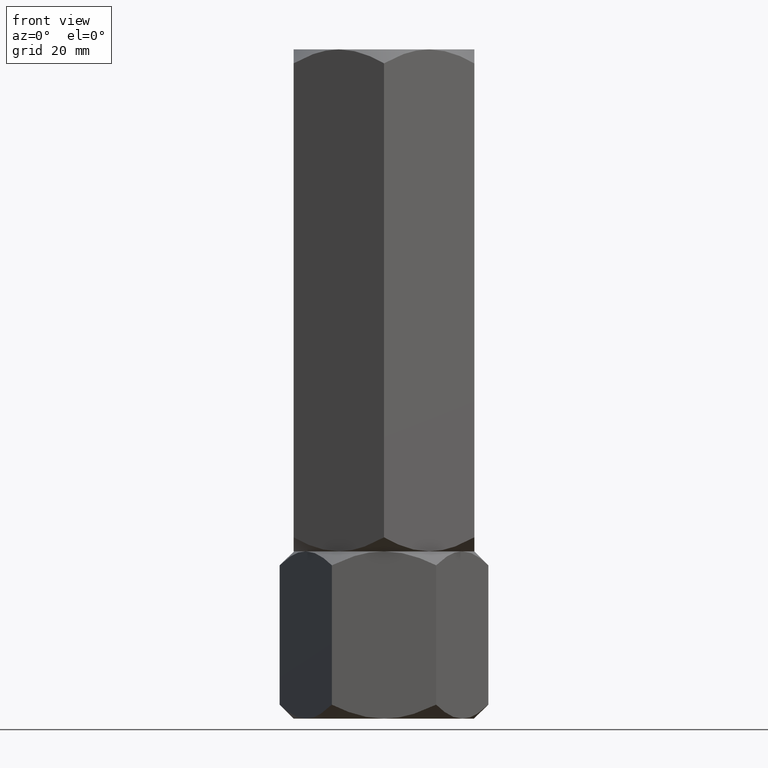
[diagram: clean part render]
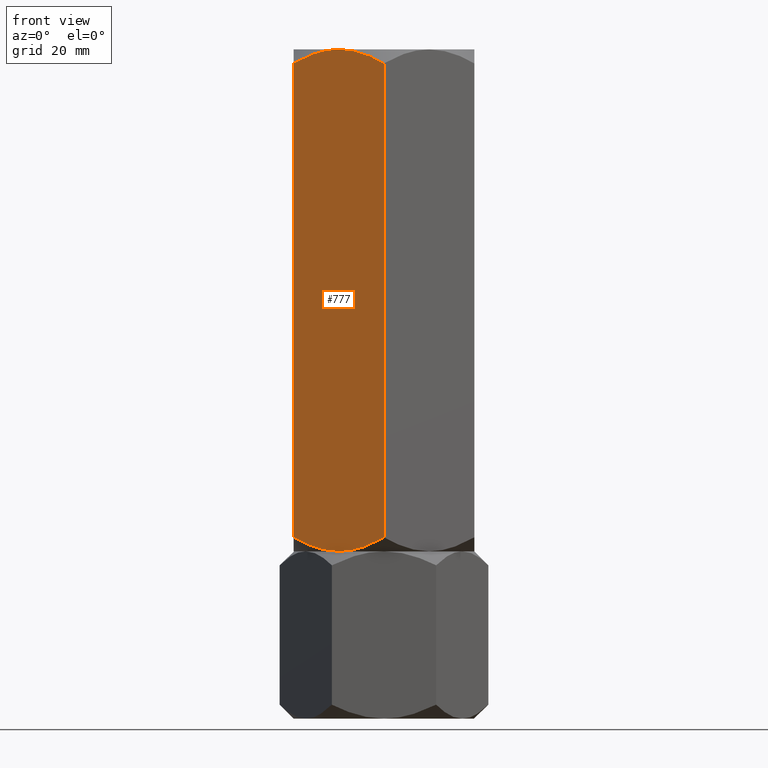
[diagram: same view with one face highlighted and labeled with its STEP entity id]
A machine part, front view. The second image highlights one B-rep face of the part: STEP entity #777.
In plain terms, the highlighted planar face has unit normal (0.5, 0.866, -0).
Its self-contained STEP definition (entity closure, byte-faithful):
#25 = EDGE_CURVE ( 'NONE', #1514, #1714, #1827, .T. ) ;
#28 = CARTESIAN_POINT ( 'NONE',  ( -6.297340013485389316E-15, -20.78460969082653165, 130.5487236425067863 ) ) ;
#32 = PLANE ( 'NONE',  #1925 ) ;
#48 = CARTESIAN_POINT ( 'NONE',  ( -3.379014044959083873E-15, -20.78460969082652809, 36.11794302415981406 ) ) ;
#100 = CARTESIAN_POINT ( 'NONE',  ( -12.10430252359948256, -13.79618737047369947, 33.60972924045488242 ) ) ;
#124 = CARTESIAN_POINT ( 'NONE',  ( -3.379014044959083873E-15, -20.78460969082652809, 36.11794302415981406 ) ) ;
#160 = VERTEX_POINT ( 'NONE', #1517 ) ;
#171 = CARTESIAN_POINT ( 'NONE',  ( -8.209538469370132319, -16.04483044561309057, 33.35066618980736308 ) ) ;
#172 = CARTESIAN_POINT ( 'NONE',  ( -1.409696000463992682, -19.97072132548310108, 131.3626120078502595 ) ) ;
#186 = CARTESIAN_POINT ( 'NONE',  ( -2.854601888853814717, -19.13650452186756468, 34.61071641122316578 ) ) ;
#195 = DIRECTION ( 'NONE',  ( 0.5000000000000003331, 0.8660254037844385966, -0.000000000000000000 ) ) ;
#224 = VERTEX_POINT ( 'NONE', #124 ) ;
#254 = CARTESIAN_POINT ( 'NONE',  ( -10.56546083169954642, -14.68463803553234293, 33.33333333333329307 ) ) ;
#289 = CARTESIAN_POINT ( 'NONE',  ( -9.000000000000005329, -15.58845726811989429, 33.33333333333330017 ) ) ;
#348 = FACE_OUTER_BOUND ( 'NONE', #1914, .T. ) ;
#366 = EDGE_CURVE ( 'NONE', #224, #2009, #1967, .T. ) ;
#378 = ORIENTED_EDGE ( 'NONE', *, *, #1054, .T. ) ;
#426 = CARTESIAN_POINT ( 'NONE',  ( -9.000000000000003553, -15.58845726811989074, 133.3333333333333144 ) ) ;
#516 = CARTESIAN_POINT ( 'NONE',  ( -18.00000000000000355, -10.39230484541325872, 133.3333333333333144 ) ) ;
#518 = CARTESIAN_POINT ( 'NONE',  ( -5.097327296964722976, -17.84166640377631552, 33.87041888916230192 ) ) ;
#558 = B_SPLINE_CURVE_WITH_KNOTS ( 'NONE', 3,
 ( #289, #254, #100, #722, #1040, #1362 ),
 .UNSPECIFIED., .F., .F.,
 ( 4, 2, 4 ),
 ( 0.01077282027732747241, 0.01612137750481873466, 0.02146993473231000038 ),
 .UNSPECIFIED. ) ;
#585 = LINE ( 'NONE', #743, #1288 ) ;
#648 = CARTESIAN_POINT ( 'NONE',  ( -5.858009779716805809, -17.40248616759157585, 33.67389643558856704 ) ) ;
#668 = CARTESIAN_POINT ( 'NONE',  ( -10.58425150785354596, -14.67378923359657961, 133.2463864432151297 ) ) ;
#722 = CARTESIAN_POINT ( 'NONE',  ( -15.13928418966203893, -12.04393988858690001, 34.60590803483753319 ) ) ;
#743 = CARTESIAN_POINT ( 'NONE',  ( -18.00000000000000355, -10.39230484541325872, 133.3333333333333144 ) ) ;
#777 = ADVANCED_FACE ( 'NONE', ( #348 ), #32, .F. ) ;
#791 = CARTESIAN_POINT ( 'NONE',  ( -6.297340013485389316E-15, -20.78460969082653165, 130.5487236425067863 ) ) ;
#807 = CARTESIAN_POINT ( 'NONE',  ( -8.605874323383776670, -15.81600583360881807, 33.33333333333330728 ) ) ;
#894 = ORIENTED_EDGE ( 'NONE', *, *, #1775, .F. ) ;
#912 = B_SPLINE_CURVE_WITH_KNOTS ( 'NONE', 3,
 ( #2051, #1897, #1132, #1099, #1737, #1268, #668, #1547, #935, #1486 ),
 .UNSPECIFIED., .F., .F.,
 ( 4, 2, 2, 2, 4 ),
 ( 2.544307986816325776E-07, 0.005386537354063064727, 0.008079678815695268135, 0.009426249546511372007, 0.01077282027732747414 ),
 .UNSPECIFIED. ) ;
#935 = CARTESIAN_POINT ( 'NONE',  ( -9.394125676616237541, -15.36090870263096519, 133.3333333333333428 ) ) ;
#936 = ORIENTED_EDGE ( 'NONE', *, *, #25, .F. ) ;
#1040 = CARTESIAN_POINT ( 'NONE',  ( -16.59030399953601886, -11.20619321075667862, 35.30405465881634797 ) ) ;
#1054 = EDGE_CURVE ( 'NONE', #160, #1359, #585, .T. ) ;
#1099 = CARTESIAN_POINT ( 'NONE',  ( -12.90267270303528058, -13.33524813246346774, 132.7962477775043055 ) ) ;
#1132 = CARTESIAN_POINT ( 'NONE',  ( -15.14539811114619283, -12.04041001437221858, 132.0559502554434061 ) ) ;
#1136 = DIRECTION ( 'NONE',  ( -0.8660254037844384856, 0.5000000000000002220, 0.000000000000000000 ) ) ;
#1139 = CARTESIAN_POINT ( 'NONE',  ( -7.415748492146458481, -16.50312530264320188, 33.42028022345144933 ) ) ;
#1141 = CARTESIAN_POINT ( 'NONE',  ( -2.998680872865238938E-15, -20.78460969082652809, 133.3333333333333144 ) ) ;
#1212 = DIRECTION ( 'NONE',  ( -0.000000000000000000, -0.000000000000000000, -1.000000000000000000 ) ) ;
#1244 = CARTESIAN_POINT ( 'NONE',  ( -9.000000000000005329, -15.58845726811989429, 33.33333333333330017 ) ) ;
#1268 = CARTESIAN_POINT ( 'NONE',  ( -10.97671975407796019, -14.44719758599053172, 133.1946107342347148 ) ) ;
#1288 = VECTOR ( 'NONE', #1212, 1000.000000000000000 ) ;
#1300 = CARTESIAN_POINT ( 'NONE',  ( -5.895697476400527215, -17.38072716576608556, 133.0569374262117606 ) ) ;
#1359 = VERTEX_POINT ( 'NONE', #1794 ) ;
#1362 = CARTESIAN_POINT ( 'NONE',  ( -18.00000000000000355, -10.39230484541325872, 36.11794302415981406 ) ) ;
#1391 = EDGE_CURVE ( 'NONE', #1714, #224, #1490, .T. ) ;
#1457 = CARTESIAN_POINT ( 'NONE',  ( -7.434539168300463352, -16.49227650070743678, 133.3333333333332860 ) ) ;
#1486 = CARTESIAN_POINT ( 'NONE',  ( -9.000000000000003553, -15.58845726811989074, 133.3333333333333144 ) ) ;
#1490 = LINE ( 'NONE', #1141, #1659 ) ;
#1514 = VERTEX_POINT ( 'NONE', #426 ) ;
#1517 = CARTESIAN_POINT ( 'NONE',  ( -18.00000000000000711, -10.39230484541325694, 130.5487236425067863 ) ) ;
#1547 = CARTESIAN_POINT ( 'NONE',  ( -9.790461530629876563, -15.13208409062668736, 133.3160004768592160 ) ) ;
#1595 = CARTESIAN_POINT ( 'NONE',  ( -9.000000000000003553, -15.58845726811989074, 133.3333333333333144 ) ) ;
#1613 = CARTESIAN_POINT ( 'NONE',  ( -1.411330396252050923, -19.96977770663490759, 35.30311103996819355 ) ) ;
#1629 = ORIENTED_EDGE ( 'NONE', *, *, #366, .F. ) ;
#1647 = DIRECTION ( 'NONE',  ( -0.000000000000000000, -0.000000000000000000, -1.000000000000000000 ) ) ;
#1659 = VECTOR ( 'NONE', #1647, 1000.000000000000000 ) ;
#1687 = EDGE_CURVE ( 'NONE', #2009, #1359, #558, .T. ) ;
#1714 = VERTEX_POINT ( 'NONE', #28 ) ;
#1737 = CARTESIAN_POINT ( 'NONE',  ( -12.14199022028321373, -13.77442836864821452, 132.9927702310780546 ) ) ;
#1775 = EDGE_CURVE ( 'NONE', #160, #1514, #912, .T. ) ;
#1777 = CARTESIAN_POINT ( 'NONE',  ( -9.000000000000005329, -15.58845726811989429, 33.33333333333330017 ) ) ;
#1781 = ORIENTED_EDGE ( 'NONE', *, *, #1687, .F. ) ;
#1794 = CARTESIAN_POINT ( 'NONE',  ( -18.00000000000000355, -10.39230484541325872, 36.11794302415981406 ) ) ;
#1827 = B_SPLINE_CURVE_WITH_KNOTS ( 'NONE', 3,
 ( #1595, #1457, #1300, #1905, #172, #791 ),
 .UNSPECIFIED., .F., .F.,
 ( 4, 2, 4 ),
 ( 0.01077282027732747414, 0.01612137750481874160, 0.02146993473231000732 ),
 .UNSPECIFIED. ) ;
#1843 = ORIENTED_EDGE ( 'NONE', *, *, #1391, .F. ) ;
#1897 = CARTESIAN_POINT ( 'NONE',  ( -16.58866960374795951, -11.20713682960487567, 131.3635556266983428 ) ) ;
#1905 = CARTESIAN_POINT ( 'NONE',  ( -2.860715810337969955, -19.13297464765287614, 132.0607586318289748 ) ) ;
#1914 = EDGE_LOOP ( 'NONE', ( #894, #378, #1781, #1629, #1843, #936 ) ) ;
#1925 = AXIS2_PLACEMENT_3D ( 'NONE', #516, #195, #1136 ) ;
#1927 = CARTESIAN_POINT ( 'NONE',  ( -7.023280245922047804, -16.72971695024923733, 33.47205593243187138 ) ) ;
#1967 = B_SPLINE_CURVE_WITH_KNOTS ( 'NONE', 3,
 ( #48, #1613, #186, #518, #648, #1927, #1139, #171, #807, #1777 ),
 .UNSPECIFIED., .F., .F.,
 ( 4, 2, 2, 2, 4 ),
 ( 2.544307986818388831E-07, 0.005386537354063075135, 0.008079678815695271604, 0.009426249546511370273, 0.01077282027732747241 ),
 .UNSPECIFIED. ) ;
#2009 = VERTEX_POINT ( 'NONE', #1244 ) ;
#2051 = CARTESIAN_POINT ( 'NONE',  ( -18.00000000000000711, -10.39230484541325694, 130.5487236425067863 ) ) ;